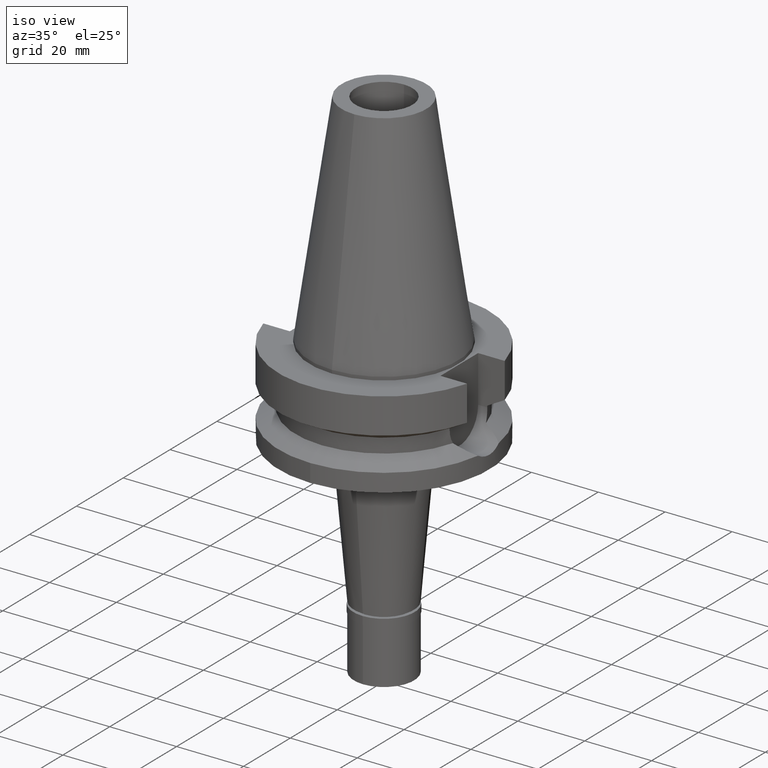
[diagram: clean part render]
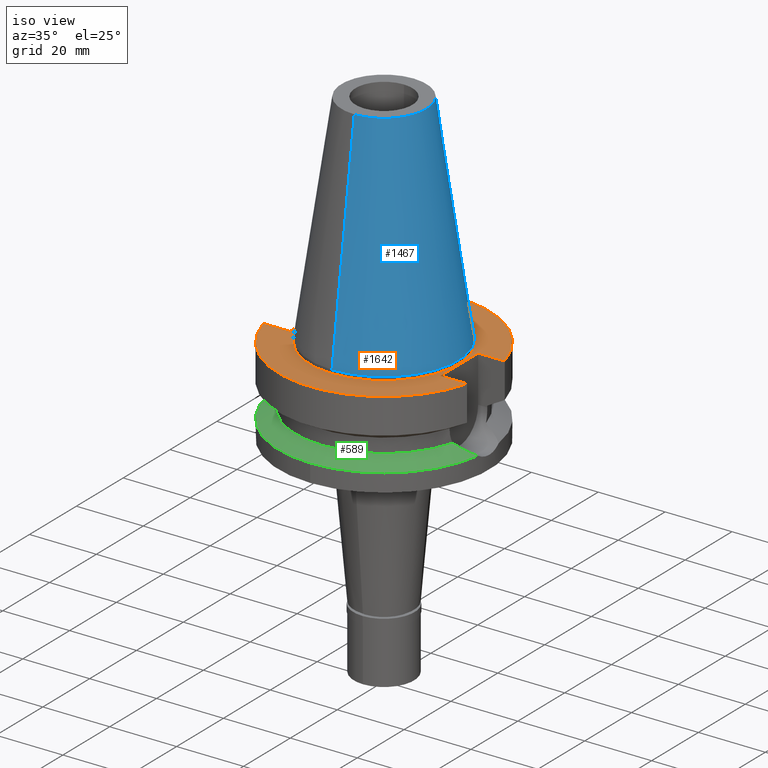
[diagram: same view with three faces highlighted in distinct colors, each labeled with its STEP entity id]
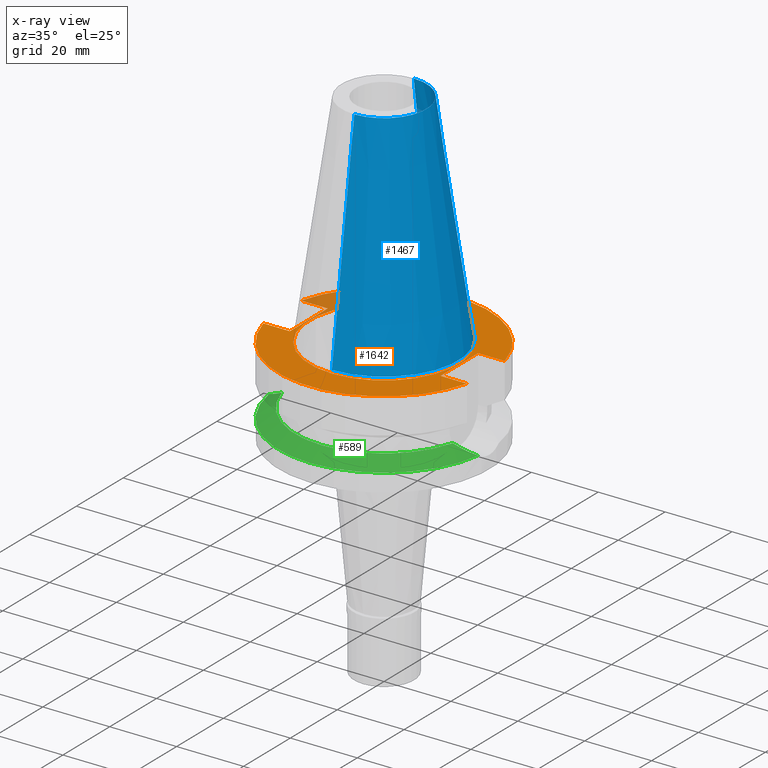
[diagram: x-ray of the same camera — body ghosted, the three highlighted faces saturated]
A machine part, iso view with three faces highlighted in distinct colors.
The next image is the same camera in x-ray (body ghosted, the three faces saturated) — at least one of them is partly hidden behind the body in this view.
Their STEP definitions:

[orange] entity #1642 — the highlighted planar face has unit normal (0, 0, -1).
#18 = VERTEX_POINT ( 'NONE', #609 ) ;
#61 = ORIENTED_EDGE ( 'NONE', *, *, #2130, .F. ) ;
#144 = EDGE_CURVE ( 'NONE', #18, #2329, #1673, .T. ) ;
#148 = AXIS2_PLACEMENT_3D ( 'NONE', #155, #1544, #356 ) ;
#155 = CARTESIAN_POINT ( 'NONE',  ( 0.0000000000000000000, 2.117904174444999906E-14, -0.9999999999999000799 ) ) ;
#178 = CARTESIAN_POINT ( 'NONE',  ( -22.50000000000000000, -8.050000000000000711, -1.000000000000000000 ) ) ;
#203 = CARTESIAN_POINT ( 'NONE',  ( -22.50000000000000000, -8.050000000000000711, -1.000000000000000000 ) ) ;
#243 = DIRECTION ( 'NONE',  ( 0.0000000000000000000, 1.000000000000000000, 0.0000000000000000000 ) ) ;
#253 = VERTEX_POINT ( 'NONE', #2882 ) ;
#312 = EDGE_LOOP ( 'NONE', ( #61, #2722 ) ) ;
#343 = CARTESIAN_POINT ( 'NONE',  ( -30.45402272279000044, -8.050000000000000711, -1.000000000000000000 ) ) ;
#346 = VECTOR ( 'NONE', #1747, 1000.000000000000000 ) ;
#356 = DIRECTION ( 'NONE',  ( 0.0000000000000000000, 1.000000000000000000, 0.0000000000000000000 ) ) ;
#382 = DIRECTION ( 'NONE',  ( 0.0000000000000000000, -1.000000000000000000, 0.0000000000000000000 ) ) ;
#406 = AXIS2_PLACEMENT_3D ( 'NONE', #1349, #2510, #1588 ) ;
#440 = EDGE_CURVE ( 'NONE', #2023, #253, #1302, .T. ) ;
#477 = VERTEX_POINT ( 'NONE', #2255 ) ;
#520 = CARTESIAN_POINT ( 'NONE',  ( 22.50000000000000000, -8.050000000000000711, -1.000000000000000000 ) ) ;
#562 = FACE_OUTER_BOUND ( 'NONE', #1293, .T. ) ;
#566 = DIRECTION ( 'NONE',  ( -1.000000000000000000, 3.550916904668000126E-14, 0.0000000000000000000 ) ) ;
#585 = CARTESIAN_POINT ( 'NONE',  ( 22.50000000000000000, 8.050000000000000711, -1.000000000000000000 ) ) ;
#609 = CARTESIAN_POINT ( 'NONE',  ( 22.50000000000000000, -8.050000000000000711, -1.000000000000000000 ) ) ;
#626 = DIRECTION ( 'NONE',  ( 0.0000000000000000000, -1.000000000000000000, 0.0000000000000000000 ) ) ;
#760 = AXIS2_PLACEMENT_3D ( 'NONE', #2866, #1530, #2244 ) ;
#788 = DIRECTION ( 'NONE',  ( 0.0000000000000000000, 0.0000000000000000000, 1.000000000000000000 ) ) ;
#798 = VECTOR ( 'NONE', #1076, 1000.000000000000000 ) ;
#876 = ORIENTED_EDGE ( 'NONE', *, *, #144, .F. ) ;
#903 = ORIENTED_EDGE ( 'NONE', *, *, #1192, .T. ) ;
#937 = ORIENTED_EDGE ( 'NONE', *, *, #2854, .F. ) ;
#984 = VECTOR ( 'NONE', #382, 1000.000000000000000 ) ;
#1002 = CARTESIAN_POINT ( 'NONE',  ( -22.50000000000000000, 8.050000000000000711, -1.000000000000000000 ) ) ;
#1003 = EDGE_CURVE ( 'NONE', #2329, #2266, #2537, .T. ) ;
#1076 = DIRECTION ( 'NONE',  ( -1.000000000000000000, -3.550916904668000126E-14, 0.0000000000000000000 ) ) ;
#1092 = CIRCLE ( 'NONE', #2300, 22.22500000000000142 ) ;
#1104 = CARTESIAN_POINT ( 'NONE',  ( 0.0000000000000000000, 2.117904174444999906E-14, -0.9999999999999000799 ) ) ;
#1175 = CARTESIAN_POINT ( 'NONE',  ( 30.45402272279000044, 8.050000000000000711, -1.000000000000000000 ) ) ;
#1192 = EDGE_CURVE ( 'NONE', #1381, #1492, #2201, .T. ) ;
#1220 = EDGE_CURVE ( 'NONE', #477, #2266, #1546, .T. ) ;
#1293 = EDGE_LOOP ( 'NONE', ( #2304, #2211, #876, #2303, #903, #937, #2024, #1701 ) ) ;
#1302 = LINE ( 'NONE', #1788, #798 ) ;
#1340 = CARTESIAN_POINT ( 'NONE',  ( 0.0000000000000000000, 22.22500000000000142, -0.9999999999999000799 ) ) ;
#1349 = CARTESIAN_POINT ( 'NONE',  ( 0.0000000000000000000, 2.117904174444999906E-14, -1.000000000000000000 ) ) ;
#1381 = VERTEX_POINT ( 'NONE', #1821 ) ;
#1466 = CIRCLE ( 'NONE', #148, 22.22500000000000142 ) ;
#1492 = VERTEX_POINT ( 'NONE', #1175 ) ;
#1530 = DIRECTION ( 'NONE',  ( 0.0000000000000000000, 0.0000000000000000000, -1.000000000000000000 ) ) ;
#1544 = DIRECTION ( 'NONE',  ( 0.0000000000000000000, 0.0000000000000000000, 1.000000000000000000 ) ) ;
#1546 = LINE ( 'NONE', #203, #2194 ) ;
#1554 = CARTESIAN_POINT ( 'NONE',  ( 0.0000000000000000000, 2.117904174444999906E-14, -1.000000000000000000 ) ) ;
#1588 = DIRECTION ( 'NONE',  ( 0.0000000000000000000, -1.000000000000000000, 0.0000000000000000000 ) ) ;
#1642 = ADVANCED_FACE ( 'NONE', ( #562, #1796 ), #2018, .F. ) ;
#1655 = VERTEX_POINT ( 'NONE', #2634 ) ;
#1663 = EDGE_CURVE ( 'NONE', #1655, #2281, #1092, .T. ) ;
#1673 = LINE ( 'NONE', #520, #2630 ) ;
#1701 = ORIENTED_EDGE ( 'NONE', *, *, #2115, .F. ) ;
#1747 = DIRECTION ( 'NONE',  ( 0.0000000000000000000, 1.000000000000000000, 0.0000000000000000000 ) ) ;
#1762 = LINE ( 'NONE', #2432, #984 ) ;
#1788 = CARTESIAN_POINT ( 'NONE',  ( -22.50000000000000000, 8.050000000000000711, -1.000000000000000000 ) ) ;
#1796 = FACE_BOUND ( 'NONE', #312, .T. ) ;
#1804 = DIRECTION ( 'NONE',  ( 0.0000000000000000000, 0.0000000000000000000, -1.000000000000000000 ) ) ;
#1821 = CARTESIAN_POINT ( 'NONE',  ( 22.50000000000000000, 8.050000000000000711, -1.000000000000000000 ) ) ;
#1977 = DIRECTION ( 'NONE',  ( 1.000000000000000000, -3.506251283225999947E-14, 0.0000000000000000000 ) ) ;
#2018 = PLANE ( 'NONE',  #760 ) ;
#2023 = VERTEX_POINT ( 'NONE', #1002 ) ;
#2024 = ORIENTED_EDGE ( 'NONE', *, *, #440, .F. ) ;
#2069 = CARTESIAN_POINT ( 'NONE',  ( 30.45402272279000044, -8.050000000000000711, -1.000000000000000000 ) ) ;
#2101 = AXIS2_PLACEMENT_3D ( 'NONE', #1554, #1804, #243 ) ;
#2115 = EDGE_CURVE ( 'NONE', #477, #2023, #2669, .T. ) ;
#2130 = EDGE_CURVE ( 'NONE', #2281, #1655, #1466, .T. ) ;
#2155 = VECTOR ( 'NONE', #1977, 1000.000000000000000 ) ;
#2156 = DIRECTION ( 'NONE',  ( 1.000000000000000000, 3.573249715389999860E-14, 0.0000000000000000000 ) ) ;
#2194 = VECTOR ( 'NONE', #566, 1000.000000000000000 ) ;
#2201 = LINE ( 'NONE', #585, #2155 ) ;
#2211 = ORIENTED_EDGE ( 'NONE', *, *, #1003, .F. ) ;
#2244 = DIRECTION ( 'NONE',  ( 0.0000000000000000000, -1.000000000000000000, 0.0000000000000000000 ) ) ;
#2247 = EDGE_CURVE ( 'NONE', #1381, #18, #1762, .T. ) ;
#2255 = CARTESIAN_POINT ( 'NONE',  ( -22.50000000000000000, -8.050000000000000711, -1.000000000000000000 ) ) ;
#2266 = VERTEX_POINT ( 'NONE', #343 ) ;
#2281 = VERTEX_POINT ( 'NONE', #1340 ) ;
#2300 = AXIS2_PLACEMENT_3D ( 'NONE', #1104, #788, #626 ) ;
#2303 = ORIENTED_EDGE ( 'NONE', *, *, #2247, .F. ) ;
#2304 = ORIENTED_EDGE ( 'NONE', *, *, #1220, .T. ) ;
#2329 = VERTEX_POINT ( 'NONE', #2069 ) ;
#2432 = CARTESIAN_POINT ( 'NONE',  ( 22.50000000000000000, 8.050000000000000711, -1.000000000000000000 ) ) ;
#2510 = DIRECTION ( 'NONE',  ( 0.0000000000000000000, 0.0000000000000000000, -1.000000000000000000 ) ) ;
#2537 = CIRCLE ( 'NONE', #406, 31.50000000000000000 ) ;
#2578 = CIRCLE ( 'NONE', #2101, 31.50000000000000000 ) ;
#2630 = VECTOR ( 'NONE', #2156, 1000.000000000000000 ) ;
#2634 = CARTESIAN_POINT ( 'NONE',  ( 0.0000000000000000000, -22.22500000000000142, -0.9999999999999000799 ) ) ;
#2669 = LINE ( 'NONE', #178, #346 ) ;
#2722 = ORIENTED_EDGE ( 'NONE', *, *, #1663, .F. ) ;
#2854 = EDGE_CURVE ( 'NONE', #253, #1492, #2578, .T. ) ;
#2866 = CARTESIAN_POINT ( 'NONE',  ( 0.0000000000000000000, 1.212400331155999925E-14, -1.000000000000000000 ) ) ;
#2882 = CARTESIAN_POINT ( 'NONE',  ( -30.45402272279000044, 8.050000000000000711, -1.000000000000000000 ) ) ;

[blue] entity #1467 — the highlighted conical surface has half-angle 8.297 deg.
#46 = CARTESIAN_POINT ( 'NONE',  ( 0.0000000000000000000, 1.625106302469000024E-14, 32.70000000000000284 ) ) ;
#116 = VERTEX_POINT ( 'NONE', #2610 ) ;
#230 = CONICAL_SURFACE ( 'NONE', #1918, 17.45633449714999941, 0.1448099680379422438 ) ;
#242 = DIRECTION ( 'NONE',  ( 0.0000000000000000000, 0.0000000000000000000, -1.000000000000000000 ) ) ;
#246 = VERTEX_POINT ( 'NONE', #1743 ) ;
#297 = DIRECTION ( 'NONE',  ( 0.0000000000000000000, 1.000000000000000000, 0.0000000000000000000 ) ) ;
#478 = CARTESIAN_POINT ( 'NONE',  ( 0.0000000000000000000, 12.68766899429999917, 65.40000000000000568 ) ) ;
#530 = CARTESIAN_POINT ( 'NONE',  ( 0.0000000000000000000, 1.625106302469000024E-14, 2.842170943039999687E-14 ) ) ;
#559 = CIRCLE ( 'NONE', #2242, 22.22500000000000142 ) ;
#574 = CARTESIAN_POINT ( 'NONE',  ( 0.0000000000000000000, 12.68766899429999917, 65.40000000000000568 ) ) ;
#830 = VECTOR ( 'NONE', #1737, 1000.000000000000114 ) ;
#841 = CARTESIAN_POINT ( 'NONE',  ( 0.0000000000000000000, -22.22500000000000142, 7.105427357600999334E-14 ) ) ;
#860 = EDGE_LOOP ( 'NONE', ( #1784, #1449, #2883, #1691 ) ) ;
#979 = DIRECTION ( 'NONE',  ( 0.0000000000000000000, -1.000000000000000000, 0.0000000000000000000 ) ) ;
#1019 = LINE ( 'NONE', #574, #2839 ) ;
#1236 = CIRCLE ( 'NONE', #2488, 12.68766899429999917 ) ;
#1237 = EDGE_CURVE ( 'NONE', #2429, #246, #1236, .T. ) ;
#1449 = ORIENTED_EDGE ( 'NONE', *, *, #2249, .T. ) ;
#1467 = ADVANCED_FACE ( 'NONE', ( #1886 ), #230, .T. ) ;
#1493 = LINE ( 'NONE', #2685, #830 ) ;
#1496 = EDGE_CURVE ( 'NONE', #116, #2103, #559, .T. ) ;
#1633 = EDGE_CURVE ( 'NONE', #2429, #116, #1019, .T. ) ;
#1650 = CARTESIAN_POINT ( 'NONE',  ( 0.0000000000000000000, 1.625106302469000024E-14, 65.40000000000000568 ) ) ;
#1691 = ORIENTED_EDGE ( 'NONE', *, *, #1633, .F. ) ;
#1737 = DIRECTION ( 'NONE',  ( 0.0000000000000000000, -0.1443043893539925626, -0.9895333461855498891 ) ) ;
#1743 = CARTESIAN_POINT ( 'NONE',  ( 0.0000000000000000000, -12.68766899429999917, 65.40000000000000568 ) ) ;
#1784 = ORIENTED_EDGE ( 'NONE', *, *, #1237, .T. ) ;
#1886 = FACE_OUTER_BOUND ( 'NONE', #860, .T. ) ;
#1918 = AXIS2_PLACEMENT_3D ( 'NONE', #46, #242, #979 ) ;
#1930 = DIRECTION ( 'NONE',  ( 0.0000000000000000000, 0.1443043893539925626, -0.9895333461855498891 ) ) ;
#2095 = DIRECTION ( 'NONE',  ( 0.0000000000000000000, 0.0000000000000000000, -1.000000000000000000 ) ) ;
#2103 = VERTEX_POINT ( 'NONE', #841 ) ;
#2242 = AXIS2_PLACEMENT_3D ( 'NONE', #530, #2095, #297 ) ;
#2249 = EDGE_CURVE ( 'NONE', #246, #2103, #1493, .T. ) ;
#2429 = VERTEX_POINT ( 'NONE', #478 ) ;
#2488 = AXIS2_PLACEMENT_3D ( 'NONE', #1650, #2752, #2952 ) ;
#2610 = CARTESIAN_POINT ( 'NONE',  ( 0.0000000000000000000, 22.22500000000000142, 7.105427357600999334E-14 ) ) ;
#2685 = CARTESIAN_POINT ( 'NONE',  ( 0.0000000000000000000, -12.68766899429999917, 65.40000000000000568 ) ) ;
#2752 = DIRECTION ( 'NONE',  ( 0.0000000000000000000, 0.0000000000000000000, -1.000000000000000000 ) ) ;
#2839 = VECTOR ( 'NONE', #1930, 1000.000000000000114 ) ;
#2883 = ORIENTED_EDGE ( 'NONE', *, *, #1496, .F. ) ;
#2952 = DIRECTION ( 'NONE',  ( 0.0000000000000000000, 1.000000000000000000, 0.0000000000000000000 ) ) ;

[green] entity #589 — the highlighted conical surface has half-angle 60 deg.
#199 = B_SPLINE_CURVE_WITH_KNOTS ( 'NONE', 3,
 ( #2638, #1956, #1273, #1981, #2906, #834, #1753, #2677, #605, #906, #202, #2060, #437 ),
 .UNSPECIFIED., .F., .F.,
 ( 4, 2, 2, 1, 2, 2, 4 ),
 ( 0.0000000000000000000, 0.2499999999999996669, 0.3750000000000004996, 0.4375000000000006106, 0.4687500000000013878, 0.5000000000000021094, 1.000000000000000000 ),
 .UNSPECIFIED. ) ;
#202 = CARTESIAN_POINT ( 'NONE',  ( -27.91684401357298384, -6.326185281596490739, -19.97052543168461725 ) ) ;
#219 = VERTEX_POINT ( 'NONE', #2892 ) ;
#226 = DIRECTION ( 'NONE',  ( 0.0000000000000000000, 0.0000000000000000000, -1.000000000000000000 ) ) ;
#235 = DIRECTION ( 'NONE',  ( 0.0000000000000000000, -1.000000000000000000, 0.0000000000000000000 ) ) ;
#250 = CARTESIAN_POINT ( 'NONE',  ( 27.80063244527985944, -6.340871410376163197, -19.91075103895295584 ) ) ;
#354 = VERTEX_POINT ( 'NONE', #1063 ) ;
#402 = CARTESIAN_POINT ( 'NONE',  ( 29.07900755745611576, -5.771595931487321529, -20.56399902750521846 ) ) ;
#421 = ORIENTED_EDGE ( 'NONE', *, *, #1877, .F. ) ;
#437 = CARTESIAN_POINT ( 'NONE',  ( -25.53175183775000079, -7.097862220092999941, -18.74774300138999905 ) ) ;
#589 = ADVANCED_FACE ( 'NONE', ( #2745 ), #1042, .T. ) ;
#605 = CARTESIAN_POINT ( 'NONE',  ( -28.96110891150470934, -5.827465514224376086, -20.50380065557156328 ) ) ;
#672 = CARTESIAN_POINT ( 'NONE',  ( 0.0000000000000000000, 0.0000000000000000000, -21.63449434733000132 ) ) ;
#697 = B_SPLINE_CURVE_WITH_KNOTS ( 'NONE', 3,
 ( #1009, #1725, #2852, #775, #1307, #2703, #402, #2505, #2260, #1811, #250, #2737, #1168, #2785, #947, #2276, #2034, #2558 ),
 .UNSPECIFIED., .F., .F.,
 ( 4, 2, 2, 2, 2, 1, 1, 2, 2, 4 ),
 ( 0.0000000000000000000, 0.2499999999999990008, 0.3749999999999985012, 0.4999999999999980016, 0.6249999999999975575, 0.6874999999999977796, 0.7187499999999980016, 0.7343749999999982236, 0.7499999999999983347, 1.000000000000000000 ),
 .UNSPECIFIED. ) ;
#775 = CARTESIAN_POINT ( 'NONE',  ( 29.92487927348331311, -5.317356110422520210, -20.99552164214616212 ) ) ;
#810 = EDGE_LOOP ( 'NONE', ( #421, #2067, #2289, #1625, #1248 ) ) ;
#834 = CARTESIAN_POINT ( 'NONE',  ( -29.39879421176962992, -5.606417139678722350, -20.72725316470779688 ) ) ;
#875 = VERTEX_POINT ( 'NONE', #2189 ) ;
#887 = CIRCLE ( 'NONE', #2036, 31.50000000000001421 ) ;
#894 = DIRECTION ( 'NONE',  ( 0.9898094849552905306, -0.1423979757318985240, 0.0000000000000000000 ) ) ;
#900 = AXIS2_PLACEMENT_3D ( 'NONE', #2286, #226, #2081 ) ;
#906 = CARTESIAN_POINT ( 'NONE',  ( -28.90647546152389680, -5.853935365732822582, -20.47590229612076129 ) ) ;
#947 = CARTESIAN_POINT ( 'NONE',  ( 27.36053376215580712, -6.509846080629803744, -19.68553574416871044 ) ) ;
#960 = DIRECTION ( 'NONE',  ( -0.9634623335000935818, -0.2678438573619981722, 0.0000000000000000000 ) ) ;
#973 = EDGE_CURVE ( 'NONE', #354, #2502, #199, .T. ) ;
#982 = CARTESIAN_POINT ( 'NONE',  ( 0.0000000000000000000, 0.0000000000000000000, -18.74774300138999905 ) ) ;
#1009 = CARTESIAN_POINT ( 'NONE',  ( 31.17899877608999759, -4.485536235554000051, -21.63449434733000132 ) ) ;
#1042 = CONICAL_SURFACE ( 'NONE', #900, 29.00000000000000000, 1.047197551196400456 ) ;
#1063 = CARTESIAN_POINT ( 'NONE',  ( -31.17899877608999759, -4.485536235554000051, -21.63449434733000132 ) ) ;
#1168 = CARTESIAN_POINT ( 'NONE',  ( 27.46439939177341216, -6.470843092568092203, -19.73870086256953726 ) ) ;
#1181 = CIRCLE ( 'NONE', #1798, 26.49999999999998224 ) ;
#1248 = ORIENTED_EDGE ( 'NONE', *, *, #973, .F. ) ;
#1273 = CARTESIAN_POINT ( 'NONE',  ( -30.49952972325962719, -4.971767002602359931, -21.28859701029935891 ) ) ;
#1307 = CARTESIAN_POINT ( 'NONE',  ( 29.72181784234763668, -5.432977481465520952, -20.89197538968526402 ) ) ;
#1405 = CARTESIAN_POINT ( 'NONE',  ( 0.0000000000000000000, 0.0000000000000000000, -21.63449434733000132 ) ) ;
#1476 = CARTESIAN_POINT ( 'NONE',  ( -25.53175183775000079, -7.097862220092999941, -18.74774300138999905 ) ) ;
#1625 = ORIENTED_EDGE ( 'NONE', *, *, #2527, .F. ) ;
#1725 = CARTESIAN_POINT ( 'NONE',  ( 30.86096763062839798, -4.726816494017309189, -21.47258661190555884 ) ) ;
#1753 = CARTESIAN_POINT ( 'NONE',  ( -29.23789764480909525, -5.690241946959003982, -20.64512606556990804 ) ) ;
#1790 = EDGE_CURVE ( 'NONE', #2258, #875, #697, .T. ) ;
#1798 = AXIS2_PLACEMENT_3D ( 'NONE', #982, #2828, #960 ) ;
#1811 = CARTESIAN_POINT ( 'NONE',  ( 27.99504436707177391, -6.261333656328283759, -20.01017162243824643 ) ) ;
#1862 = DIRECTION ( 'NONE',  ( 0.0000000000000000000, 0.0000000000000000000, -1.000000000000000000 ) ) ;
#1877 = EDGE_CURVE ( 'NONE', #219, #354, #2245, .T. ) ;
#1956 = CARTESIAN_POINT ( 'NONE',  ( -30.85550479248927402, -4.730960978026371500, -21.46980551400358905 ) ) ;
#1981 = CARTESIAN_POINT ( 'NONE',  ( -29.91684549097177026, -5.322161932469791523, -20.99156744242375083 ) ) ;
#2034 = CARTESIAN_POINT ( 'NONE',  ( 26.19484319885699364, -6.915589767455643688, -19.08840448239387300 ) ) ;
#2036 = AXIS2_PLACEMENT_3D ( 'NONE', #1405, #2327, #894 ) ;
#2060 = CARTESIAN_POINT ( 'NONE',  ( -26.81134067717680836, -6.746125174777158229, -19.40512847597989321 ) ) ;
#2067 = ORIENTED_EDGE ( 'NONE', *, *, #2437, .F. ) ;
#2081 = DIRECTION ( 'NONE',  ( 0.0000000000000000000, -1.000000000000000000, 0.0000000000000000000 ) ) ;
#2189 = CARTESIAN_POINT ( 'NONE',  ( 25.53175183775000079, -7.097862220092999941, -18.74774300138999905 ) ) ;
#2245 = CIRCLE ( 'NONE', #2977, 31.50000000000000000 ) ;
#2258 = VERTEX_POINT ( 'NONE', #2656 ) ;
#2260 = CARTESIAN_POINT ( 'NONE',  ( 28.37534302255610186, -6.100794907570858072, -20.20459595190763835 ) ) ;
#2276 = CARTESIAN_POINT ( 'NONE',  ( 26.79363038716826040, -6.719763068448648013, -19.39531138970469115 ) ) ;
#2286 = CARTESIAN_POINT ( 'NONE',  ( 0.0000000000000000000, 0.0000000000000000000, -20.19111867435999841 ) ) ;
#2289 = ORIENTED_EDGE ( 'NONE', *, *, #1790, .T. ) ;
#2327 = DIRECTION ( 'NONE',  ( 0.0000000000000000000, 0.0000000000000000000, -1.000000000000000000 ) ) ;
#2437 = EDGE_CURVE ( 'NONE', #2258, #219, #887, .T. ) ;
#2502 = VERTEX_POINT ( 'NONE', #1476 ) ;
#2505 = CARTESIAN_POINT ( 'NONE',  ( 28.61750639010428188, -5.991821424534175655, -20.32832305488566504 ) ) ;
#2527 = EDGE_CURVE ( 'NONE', #2502, #875, #1181, .T. ) ;
#2558 = CARTESIAN_POINT ( 'NONE',  ( 25.53175183775000079, -7.097862220092999941, -18.74774300138999905 ) ) ;
#2638 = CARTESIAN_POINT ( 'NONE',  ( -31.17899877608999759, -4.485536235554000051, -21.63449434733000132 ) ) ;
#2656 = CARTESIAN_POINT ( 'NONE',  ( 31.17899877608999759, -4.485536235554000051, -21.63449434733000132 ) ) ;
#2677 = CARTESIAN_POINT ( 'NONE',  ( -29.07243342518199114, -5.772757391562658214, -20.56064418221830792 ) ) ;
#2703 = CARTESIAN_POINT ( 'NONE',  ( 29.29816114165668139, -5.660441431961668712, -20.67584593086453637 ) ) ;
#2737 = CARTESIAN_POINT ( 'NONE',  ( 27.56638250529775291, -6.432106827427226392, -19.79089562540659486 ) ) ;
#2745 = FACE_OUTER_BOUND ( 'NONE', #810, .T. ) ;
#2785 = CARTESIAN_POINT ( 'NONE',  ( 27.39605762307416015, -6.496582815469568395, -19.70372031911562516 ) ) ;
#2828 = DIRECTION ( 'NONE',  ( 0.0000000000000000000, 0.0000000000000000000, 1.000000000000000000 ) ) ;
#2852 = CARTESIAN_POINT ( 'NONE',  ( 30.50766252709289716, -4.966339598881759798, -21.29260496868050367 ) ) ;
#2892 = CARTESIAN_POINT ( 'NONE',  ( 0.0000000000000000000, -31.50000000000000000, -21.63449434733000132 ) ) ;
#2906 = CARTESIAN_POINT ( 'NONE',  ( -29.71449714213525439, -5.437154199316177383, -20.88836032130903675 ) ) ;
#2977 = AXIS2_PLACEMENT_3D ( 'NONE', #672, #1862, #235 ) ;